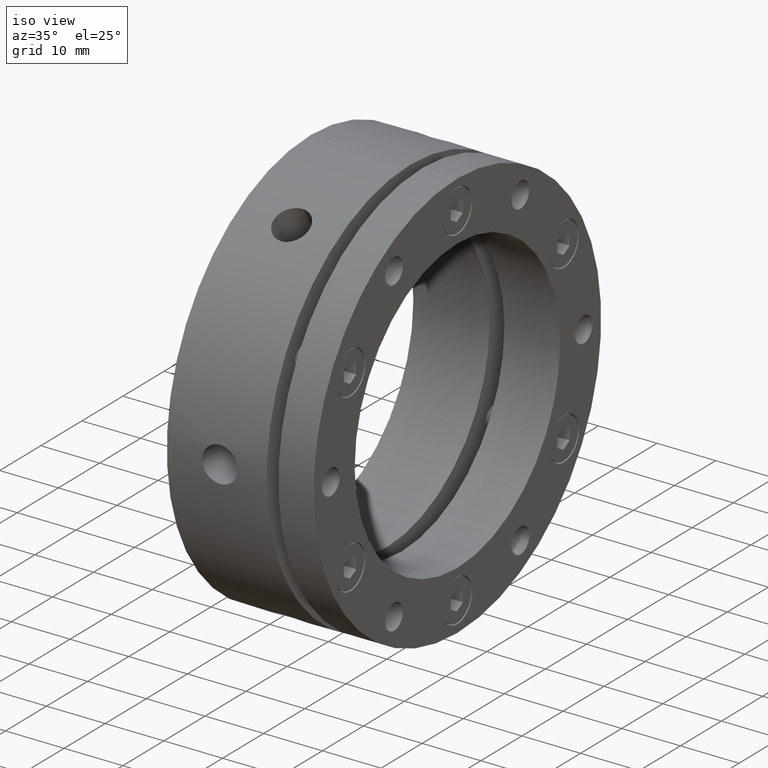
[diagram: clean part render]
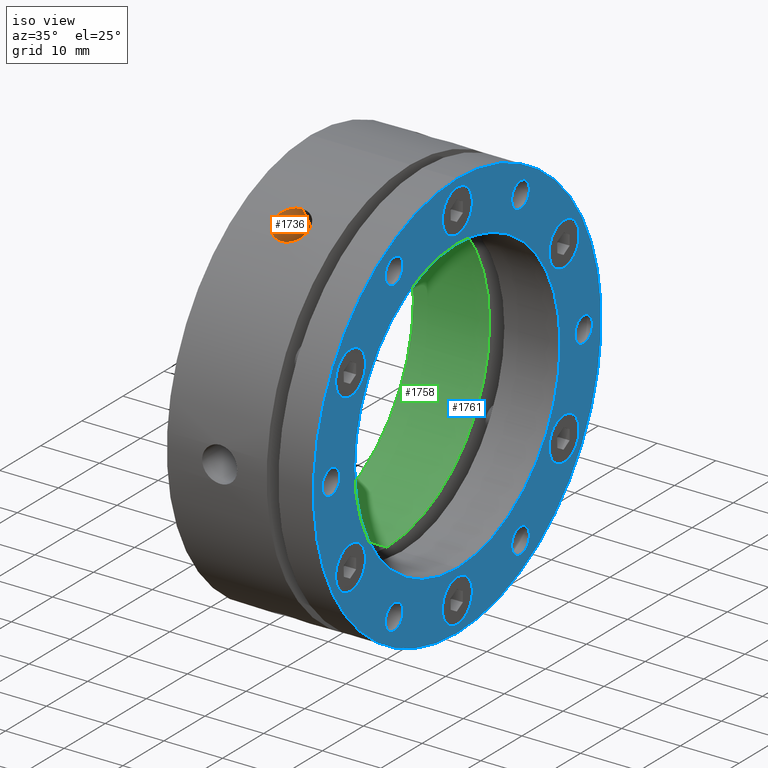
[diagram: same view with three faces highlighted in distinct colors, each labeled with its STEP entity id]
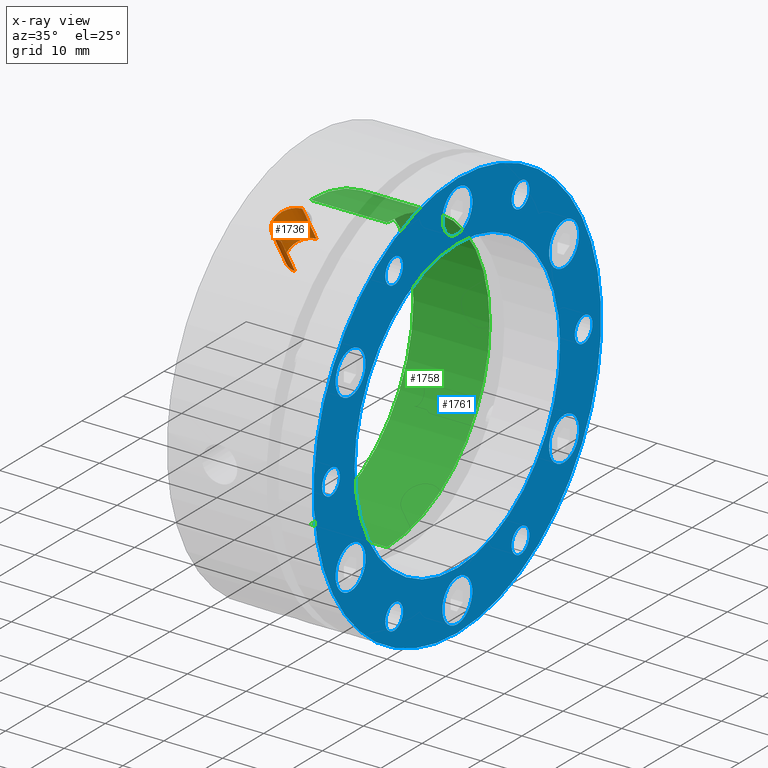
[diagram: x-ray of the same camera — body ghosted, the three highlighted faces saturated]
A machine part, iso view with three faces highlighted in distinct colors.
The next image is the same camera in x-ray (body ghosted, the three faces saturated) — at least one of them is partly hidden behind the body in this view.
Their STEP definitions:

[orange] entity #1736 — the highlighted cylindrical surface (edge-blend (fillet) strip) has radius 3 mm, axis along (0, -0.5, 0.866).
#57 = AXIS2_PLACEMENT_3D ( 'NONE', #3183, #3184, #3185 ) ;
#92 = AXIS2_PLACEMENT_3D ( 'NONE', #3284, #3283, #3281 ) ;
#241 = B_SPLINE_CURVE_WITH_KNOTS ( 'NONE', 3,
 ( #3085, #3045, #3088, #3089, #3090, #3091, #3092, #3093, #3094, #3095, #3096, #3097, #3098, #3099, #3100, #3101, #3102, #3103, #3104, #3105, #3106, #3107, #3108, #3109, #3110, #3111, #3112, #3113, #3114, #3115, #3116, #3117, #3118, #3119 ),
 .UNSPECIFIED., .F., .F.,
 ( 4, 2, 2, 2, 2, 2, 2, 2, 2, 2, 2, 2, 2, 2, 2, 2, 4 ),
 ( 0.01407455708570578800, 0.01466090968183382500, 0.01524726227796186300, 0.01583361487408990400, 0.01641996747021794200, 0.01700632006634598300, 0.01759267266247402400, 0.01817902525860206500, 0.01876537785473010200, 0.01935173045085814400, 0.01993808304698618100, 0.02052443564311422200, 0.02111078823924226300, 0.02169714083537030100, 0.02228349343149833800, 0.02286984602762638000, 0.02345619862375442100 ),
 .UNSPECIFIED. ) ;
#321 = ORIENTED_EDGE ( 'NONE', *, *, #1703, .F. ) ;
#336 = ORIENTED_EDGE ( 'NONE', *, *, #1688, .F. ) ;
#337 = ORIENTED_EDGE ( 'NONE', *, *, #1687, .T. ) ;
#342 = ORIENTED_EDGE ( 'NONE', *, *, #1689, .F. ) ;
#545 = EDGE_LOOP ( 'NONE', ( #321, #337, #336, #342 ) ) ;
#678 = VERTEX_POINT ( 'NONE', #1608 ) ;
#679 = VERTEX_POINT ( 'NONE', #1619 ) ;
#681 = VERTEX_POINT ( 'NONE', #1620 ) ;
#687 = VERTEX_POINT ( 'NONE', #1625 ) ;
#1608 = CARTESIAN_POINT ( 'NONE',  ( 8.999999999999989300, -14.83751956280938200, 31.69933774108299600 ) ) ;
#1619 = CARTESIAN_POINT ( 'NONE',  ( 8.999999999999989300, -11.40192379214960800, 25.74871130394186400 ) ) ;
#1620 = CARTESIAN_POINT ( 'NONE',  ( 8.999999999999989300, -16.59807620785038700, 22.74871130798669600 ) ) ;
#1625 = CARTESIAN_POINT ( 'NONE',  ( 8.999999999999989300, -20.03367198551601500, 28.69933774108300300 ) ) ;
#1687 = EDGE_CURVE ( 'NONE', #679, #678, #2516, .T. ) ;
#1688 = EDGE_CURVE ( 'NONE', #687, #678, #241, .T. ) ;
#1689 = EDGE_CURVE ( 'NONE', #681, #687, #2513, .T. ) ;
#1703 = EDGE_CURVE ( 'NONE', #679, #681, #2536, .T. ) ;
#1736 = ADVANCED_FACE ( 'NONE', ( #2584 ), #2593, .F. ) ;
#2513 = LINE ( 'NONE', #3087, #2519 ) ;
#2516 = LINE ( 'NONE', #3084, #2517 ) ;
#2517 = VECTOR ( 'NONE', #3086, 1000.000000000000100 ) ;
#2519 = VECTOR ( 'NONE', #3120, 1000.000000000000100 ) ;
#2536 = CIRCLE ( 'NONE', #57, 3.000000000000000900 ) ;
#2584 = FACE_OUTER_BOUND ( 'NONE', #545, .T. ) ;
#2593 = CYLINDRICAL_SURFACE ( 'NONE', #92, 3.000000000000002700 ) ;
#3045 = CARTESIAN_POINT ( 'NONE',  ( 8.804268280299762500, -20.03367198551602300, 28.69933774108301000 ) ) ;
#3084 = CARTESIAN_POINT ( 'NONE',  ( 8.999999999999989300, -13.15192378864668800, 28.77980021920981800 ) ) ;
#3085 = CARTESIAN_POINT ( 'NONE',  ( 8.999999999999989300, -20.03367198551601500, 28.69933774108300300 ) ) ;
#3086 = DIRECTION ( 'NONE',  ( 0.0000000000000000000, -0.4999999999999998300, 0.8660254037844387100 ) ) ;
#3087 = CARTESIAN_POINT ( 'NONE',  ( 8.999999999999989300, -18.34807621135332300, 25.77980021920981500 ) ) ;
#3088 = CARTESIAN_POINT ( 'NONE',  ( 8.605453765022618400, -20.01755239018052300, 28.71060917894779500 ) ) ;
#3089 = CARTESIAN_POINT ( 'NONE',  ( 8.220725838262371400, -19.95432212370121800, 28.75459114130248800 ) ) ;
#3090 = CARTESIAN_POINT ( 'NONE',  ( 8.033723180911865200, -19.90755666924330600, 28.78706098826131300 ) ) ;
#3091 = CARTESIAN_POINT ( 'NONE',  ( 7.670497288597322200, -19.78325691294927300, 28.87262438361386800 ) ) ;
#3092 = CARTESIAN_POINT ( 'NONE',  ( 7.495000060651513300, -19.70549405006566000, 28.92585969711920100 ) ) ;
#3093 = CARTESIAN_POINT ( 'NONE',  ( 7.170130174295246100, -19.52514504749969900, 29.04790122967055800 ) ) ;
#3094 = CARTESIAN_POINT ( 'NONE',  ( 7.018680568677830900, -19.42194185377912400, 29.11714024361556200 ) ) ;
#3095 = CARTESIAN_POINT ( 'NONE',  ( 6.738623315095864500, -19.18790157874091700, 29.27189973921245800 ) ) ;
#3096 = CARTESIAN_POINT ( 'NONE',  ( 6.614562747570034600, -19.06083873803343600, 29.35491209386406200 ) ) ;
#3097 = CARTESIAN_POINT ( 'NONE',  ( 6.397411554288462200, -18.78727967735345300, 29.53073923491765000 ) ) ;
#3098 = CARTESIAN_POINT ( 'NONE',  ( 6.303506750881621400, -18.63899474074403200, 29.62466742915554700 ) ) ;
#3099 = CARTESIAN_POINT ( 'NONE',  ( 6.153028218465058400, -18.33026746125752400, 29.81667889004940300 ) ) ;
#3100 = CARTESIAN_POINT ( 'NONE',  ( 6.096317045494524600, -18.17068395965968700, 29.91426449584248800 ) ) ;
#3101 = CARTESIAN_POINT ( 'NONE',  ( 6.019611320088898800, -17.84089705569850900, 30.11211331237024100 ) ) ;
#3102 = CARTESIAN_POINT ( 'NONE',  ( 5.999860334824981000, -17.66985355283397800, 30.21283796126777700 ) ) ;
#3103 = CARTESIAN_POINT ( 'NONE',  ( 6.000141170212506500, -17.32646598378768100, 30.41106507120510100 ) ) ;
#3104 = CARTESIAN_POINT ( 'NONE',  ( 6.019737038147032300, -17.15681452304187400, 30.50705630778153600 ) ) ;
#3105 = CARTESIAN_POINT ( 'NONE',  ( 6.096246883539026700, -16.82151955082783000, 30.69321177630862300 ) ) ;
#3106 = CARTESIAN_POINT ( 'NONE',  ( 6.154098672214940000, -16.65410763915669900, 30.78430922376006500 ) ) ;
#3107 = CARTESIAN_POINT ( 'NONE',  ( 6.304924467368763900, -16.33368321426678400, 30.95551305174372200 ) ) ;
#3108 = CARTESIAN_POINT ( 'NONE',  ( 6.397176593505297300, -16.18101755137164200, 31.03548423093851800 ) ) ;
#3109 = CARTESIAN_POINT ( 'NONE',  ( 6.615076528430468400, -15.89102210515650300, 31.18496475707576800 ) ) ;
#3110 = CARTESIAN_POINT ( 'NONE',  ( 6.741812522239063900, -15.75322166183033100, 31.25468245826290600 ) ) ;
#3111 = CARTESIAN_POINT ( 'NONE',  ( 7.018599878174891100, -15.50546405339725500, 31.37833253667908600 ) ) ;
#3112 = CARTESIAN_POINT ( 'NONE',  ( 7.169632827054541300, -15.39385651673429200, 31.43312337778202100 ) ) ;
#3113 = CARTESIAN_POINT ( 'NONE',  ( 7.497657549083732500, -15.19627189349017700, 31.52911962424245100 ) ) ;
#3114 = CARTESIAN_POINT ( 'NONE',  ( 7.672148078468835000, -15.11214187789458800, 31.56942800941039800 ) ) ;
#3115 = CARTESIAN_POINT ( 'NONE',  ( 8.033141099482682200, -14.97680286179778300, 31.63385833277071400 ) ) ;
#3116 = CARTESIAN_POINT ( 'NONE',  ( 8.222315267350257500, -14.92458160703963300, 31.65846413517274600 ) ) ;
#3117 = CARTESIAN_POINT ( 'NONE',  ( 8.609574061491349200, -14.85477257535943000, 31.69127986177829100 ) ) ;
#3118 = CARTESIAN_POINT ( 'NONE',  ( 8.804267984461208800, -14.83751956280938700, 31.69933774108301000 ) ) ;
#3119 = CARTESIAN_POINT ( 'NONE',  ( 8.999999999999989300, -14.83751956280938200, 31.69933774108299600 ) ) ;
#3120 = DIRECTION ( 'NONE',  ( 0.0000000000000000000, -0.4999999999999998300, 0.8660254037844387100 ) ) ;
#3183 = CARTESIAN_POINT ( 'NONE',  ( 8.999999999999989300, -14.00000000000000200, 24.24871130596427800 ) ) ;
#3184 = DIRECTION ( 'NONE',  ( 0.0000000000000000000, -0.4999999999999998900, 0.8660254037844388200 ) ) ;
#3185 = DIRECTION ( 'NONE',  ( 0.0000000000000000000, -0.8660254037844391500, -0.4999999999999991100 ) ) ;
#3281 = DIRECTION ( 'NONE',  ( 0.0000000000000000000, -0.8660254037844386000, -0.5000000000000000000 ) ) ;
#3283 = DIRECTION ( 'NONE',  ( 0.0000000000000000000, -0.4999999999999998900, 0.8660254037844388200 ) ) ;
#3284 = CARTESIAN_POINT ( 'NONE',  ( 8.999999999999989300, -15.75000000000000400, 27.27980021920981800 ) ) ;

[blue] entity #1761 — the highlighted planar face has unit normal (1, 0, 0).
#66 = AXIS2_PLACEMENT_3D ( 'NONE', #3210, #3211, #3212 ) ;
#69 = AXIS2_PLACEMENT_3D ( 'NONE', #3221, #3222, #3223 ) ;
#70 = AXIS2_PLACEMENT_3D ( 'NONE', #3225, #3226, #3227 ) ;
#115 = AXIS2_PLACEMENT_3D ( 'NONE', #3360, #3357, #3363 ) ;
#208 = AXIS2_PLACEMENT_3D ( 'NONE', #3660, #3661, #3662 ) ;
#211 = AXIS2_PLACEMENT_3D ( 'NONE', #3679, #3680, #3681 ) ;
#212 = AXIS2_PLACEMENT_3D ( 'NONE', #3682, #3683, #3684 ) ;
#213 = AXIS2_PLACEMENT_3D ( 'NONE', #3687, #3688, #3689 ) ;
#216 = AXIS2_PLACEMENT_3D ( 'NONE', #3698, #3699, #3700 ) ;
#217 = AXIS2_PLACEMENT_3D ( 'NONE', #3705, #3706, #3707 ) ;
#218 = AXIS2_PLACEMENT_3D ( 'NONE', #3708, #3709, #3710 ) ;
#219 = AXIS2_PLACEMENT_3D ( 'NONE', #3711, #3712, #3713 ) ;
#222 = AXIS2_PLACEMENT_3D ( 'NONE', #3730, #3731, #3732 ) ;
#226 = AXIS2_PLACEMENT_3D ( 'NONE', #3771, #3772, #3773 ) ;
#228 = AXIS2_PLACEMENT_3D ( 'NONE', #3782, #3783, #3784 ) ;
#230 = AXIS2_PLACEMENT_3D ( 'NONE', #3792, #3793, #3794 ) ;
#233 = AXIS2_PLACEMENT_3D ( 'NONE', #3803, #3804, #3805 ) ;
#280 = EDGE_LOOP ( 'NONE', ( #1442, #1441 ) ) ;
#294 = EDGE_LOOP ( 'NONE', ( #1073, #1074 ) ) ;
#300 = EDGE_LOOP ( 'NONE', ( #438, #1464 ) ) ;
#302 = EDGE_LOOP ( 'NONE', ( #1077, #1078 ) ) ;
#306 = EDGE_LOOP ( 'NONE', ( #1450, #1447 ) ) ;
#307 = EDGE_LOOP ( 'NONE', ( #1440, #439 ) ) ;
#308 = EDGE_LOOP ( 'NONE', ( #1449, #1448 ) ) ;
#311 = EDGE_LOOP ( 'NONE', ( #1444, #1443 ) ) ;
#313 = EDGE_LOOP ( 'NONE', ( #1446, #1445 ) ) ;
#319 = EDGE_LOOP ( 'NONE', ( #1452, #1451 ) ) ;
#409 = EDGE_LOOP ( 'NONE', ( #1075, #1076 ) ) ;
#411 = EDGE_LOOP ( 'NONE', ( #1069, #1070 ) ) ;
#421 = EDGE_LOOP ( 'NONE', ( #1071, #1072 ) ) ;
#436 = EDGE_LOOP ( 'NONE', ( #1067, #1068 ) ) ;
#438 = ORIENTED_EDGE ( 'NONE', *, *, #4026, .T. ) ;
#439 = ORIENTED_EDGE ( 'NONE', *, *, #4727, .T. ) ;
#457 = VERTEX_POINT ( 'NONE', #1482 ) ;
#470 = VERTEX_POINT ( 'NONE', #1475 ) ;
#471 = VERTEX_POINT ( 'NONE', #1479 ) ;
#472 = VERTEX_POINT ( 'NONE', #1484 ) ;
#473 = VERTEX_POINT ( 'NONE', #1485 ) ;
#478 = VERTEX_POINT ( 'NONE', #1488 ) ;
#483 = VERTEX_POINT ( 'NONE', #1489 ) ;
#487 = VERTEX_POINT ( 'NONE', #1491 ) ;
#507 = VERTEX_POINT ( 'NONE', #1497 ) ;
#529 = VERTEX_POINT ( 'NONE', #1509 ) ;
#571 = EDGE_CURVE ( 'NONE', #799, #800, #837, .T. ) ;
#586 = EDGE_CURVE ( 'NONE', #814, #815, #863, .T. ) ;
#603 = AXIS2_PLACEMENT_3D ( 'NONE', #1530, #1531, #1532 ) ;
#610 = AXIS2_PLACEMENT_3D ( 'NONE', #1565, #1566, #1567 ) ;
#799 = VERTEX_POINT ( 'NONE', #1948 ) ;
#800 = VERTEX_POINT ( 'NONE', #1949 ) ;
#802 = VERTEX_POINT ( 'NONE', #1951 ) ;
#803 = VERTEX_POINT ( 'NONE', #1952 ) ;
#806 = VERTEX_POINT ( 'NONE', #1955 ) ;
#807 = VERTEX_POINT ( 'NONE', #1956 ) ;
#810 = VERTEX_POINT ( 'NONE', #1959 ) ;
#811 = VERTEX_POINT ( 'NONE', #1960 ) ;
#814 = VERTEX_POINT ( 'NONE', #1963 ) ;
#815 = VERTEX_POINT ( 'NONE', #1964 ) ;
#818 = VERTEX_POINT ( 'NONE', #1967 ) ;
#819 = VERTEX_POINT ( 'NONE', #1968 ) ;
#822 = VERTEX_POINT ( 'NONE', #1971 ) ;
#823 = VERTEX_POINT ( 'NONE', #1972 ) ;
#826 = VERTEX_POINT ( 'NONE', #1975 ) ;
#827 = VERTEX_POINT ( 'NONE', #1976 ) ;
#830 = VERTEX_POINT ( 'NONE', #1979 ) ;
#831 = VERTEX_POINT ( 'NONE', #1980 ) ;
#837 = CIRCLE ( 'NONE', #603, 35.00000000000000000 ) ;
#863 = CIRCLE ( 'NONE', #610, 3.649999999999998600 ) ;
#1067 = ORIENTED_EDGE ( 'NONE', *, *, #4010, .T. ) ;
#1068 = ORIENTED_EDGE ( 'NONE', *, *, #3994, .T. ) ;
#1069 = ORIENTED_EDGE ( 'NONE', *, *, #4028, .T. ) ;
#1070 = ORIENTED_EDGE ( 'NONE', *, *, #4732, .T. ) ;
#1071 = ORIENTED_EDGE ( 'NONE', *, *, #4008, .T. ) ;
#1072 = ORIENTED_EDGE ( 'NONE', *, *, #4718, .T. ) ;
#1073 = ORIENTED_EDGE ( 'NONE', *, *, #4036, .T. ) ;
#1074 = ORIENTED_EDGE ( 'NONE', *, *, #4721, .T. ) ;
#1075 = ORIENTED_EDGE ( 'NONE', *, *, #4054, .T. ) ;
#1076 = ORIENTED_EDGE ( 'NONE', *, *, #4722, .T. ) ;
#1077 = ORIENTED_EDGE ( 'NONE', *, *, #1715, .F. ) ;
#1078 = ORIENTED_EDGE ( 'NONE', *, *, #571, .F. ) ;
#1440 = ORIENTED_EDGE ( 'NONE', *, *, #4014, .T. ) ;
#1441 = ORIENTED_EDGE ( 'NONE', *, *, #4726, .T. ) ;
#1442 = ORIENTED_EDGE ( 'NONE', *, *, #4019, .T. ) ;
#1443 = ORIENTED_EDGE ( 'NONE', *, *, #4729, .T. ) ;
#1444 = ORIENTED_EDGE ( 'NONE', *, *, #4027, .T. ) ;
#1445 = ORIENTED_EDGE ( 'NONE', *, *, #4723, .T. ) ;
#1446 = ORIENTED_EDGE ( 'NONE', *, *, #586, .T. ) ;
#1447 = ORIENTED_EDGE ( 'NONE', *, *, #4716, .T. ) ;
#1448 = ORIENTED_EDGE ( 'NONE', *, *, #1712, .T. ) ;
#1449 = ORIENTED_EDGE ( 'NONE', *, *, #4068, .T. ) ;
#1450 = ORIENTED_EDGE ( 'NONE', *, *, #4059, .T. ) ;
#1451 = ORIENTED_EDGE ( 'NONE', *, *, #1716, .T. ) ;
#1452 = ORIENTED_EDGE ( 'NONE', *, *, #4063, .T. ) ;
#1464 = ORIENTED_EDGE ( 'NONE', *, *, #4730, .T. ) ;
#1475 = CARTESIAN_POINT ( 'NONE',  ( 24.99999999999999300, -30.75000000000001100, 2.149999999999982100 ) ) ;
#1479 = CARTESIAN_POINT ( 'NONE',  ( 24.99999999999999300, 30.75000000000000700, 2.150000000000006600 ) ) ;
#1482 = CARTESIAN_POINT ( 'NONE',  ( 24.99999999999999300, 15.37500000000001100, 24.48028116637149800 ) ) ;
#1484 = CARTESIAN_POINT ( 'NONE',  ( 24.99999999999999300, 15.37500000000001100, 28.78028116637149500 ) ) ;
#1485 = CARTESIAN_POINT ( 'NONE',  ( 24.99999999999999300, -30.75000000000001100, -2.150000000000017700 ) ) ;
#1488 = CARTESIAN_POINT ( 'NONE',  ( 24.99999999999999300, -15.37499999999999500, -24.48028116637150500 ) ) ;
#1489 = CARTESIAN_POINT ( 'NONE',  ( 24.99999999999999300, 30.75000000000000700, -2.149999999999993700 ) ) ;
#1491 = CARTESIAN_POINT ( 'NONE',  ( 24.99999999999999300, 15.37500000000002300, -24.48028116637148700 ) ) ;
#1497 = CARTESIAN_POINT ( 'NONE',  ( 24.99999999999999300, 15.37500000000002300, -28.78028116637148400 ) ) ;
#1509 = CARTESIAN_POINT ( 'NONE',  ( 24.99999999999999300, -15.37499999999999500, -28.78028116637150500 ) ) ;
#1530 = CARTESIAN_POINT ( 'NONE',  ( 24.99999999999999300, 0.0000000000000000000, 0.0000000000000000000 ) ) ;
#1531 = DIRECTION ( 'NONE',  ( -1.000000000000000000, -0.0000000000000000000, -0.0000000000000000000 ) ) ;
#1532 = DIRECTION ( 'NONE',  ( 0.0000000000000000000, 0.0000000000000000000, -1.000000000000000000 ) ) ;
#1565 = CARTESIAN_POINT ( 'NONE',  ( 24.99999999999999300, -25.98076211353316700, -14.99999999999999800 ) ) ;
#1566 = DIRECTION ( 'NONE',  ( -1.000000000000000000, -0.0000000000000000000, -0.0000000000000000000 ) ) ;
#1567 = DIRECTION ( 'NONE',  ( 0.0000000000000000000, 0.0000000000000000000, -1.000000000000000000 ) ) ;
#1712 = EDGE_CURVE ( 'NONE', #803, #802, #2547, .T. ) ;
#1715 = EDGE_CURVE ( 'NONE', #800, #799, #2550, .T. ) ;
#1716 = EDGE_CURVE ( 'NONE', #807, #806, #2551, .T. ) ;
#1761 = ADVANCED_FACE ( 'NONE', ( #2643, #2651, #2647, #2645, #2649, #2652, #2653, #2654, #2655, #2656, #2657, #2658, #2659, #2660 ), #3362, .T. ) ;
#1948 = CARTESIAN_POINT ( 'NONE',  ( 24.99999999999999300, 4.286263797015736500E-015, 35.00000000000000000 ) ) ;
#1949 = CARTESIAN_POINT ( 'NONE',  ( 24.99999999999999300, 0.0000000000000000000, -35.00000000000000000 ) ) ;
#1951 = CARTESIAN_POINT ( 'NONE',  ( 24.99999999999999300, 0.0000000000000000000, -25.00000000000000000 ) ) ;
#1952 = CARTESIAN_POINT ( 'NONE',  ( 24.99999999999999300, 3.061616997868383000E-015, 25.00000000000000000 ) ) ;
#1955 = CARTESIAN_POINT ( 'NONE',  ( 24.99999999999999300, 0.0000000000000000000, 26.35000000000000900 ) ) ;
#1956 = CARTESIAN_POINT ( 'NONE',  ( 24.99999999999999300, 4.469960816887843400E-016, 33.65000000000000600 ) ) ;
#1959 = CARTESIAN_POINT ( 'NONE',  ( 24.99999999999999300, -25.98076211353316400, 11.35000000000000900 ) ) ;
#1960 = CARTESIAN_POINT ( 'NONE',  ( 24.99999999999999300, -25.98076211353316400, 18.65000000000000900 ) ) ;
#1963 = CARTESIAN_POINT ( 'NONE',  ( 24.99999999999999300, -25.98076211353316700, -18.64999999999999500 ) ) ;
#1964 = CARTESIAN_POINT ( 'NONE',  ( 24.99999999999999300, -25.98076211353316700, -11.34999999999999800 ) ) ;
#1967 = CARTESIAN_POINT ( 'NONE',  ( 24.99999999999999300, -4.440891999999999900E-015, -33.65000000000001300 ) ) ;
#1968 = CARTESIAN_POINT ( 'NONE',  ( 24.99999999999999300, -3.993895918311216500E-015, -26.35000000000001600 ) ) ;
#1971 = CARTESIAN_POINT ( 'NONE',  ( 24.99999999999999300, 25.98076211353316000, -18.65000000000002000 ) ) ;
#1972 = CARTESIAN_POINT ( 'NONE',  ( 24.99999999999999300, 25.98076211353316000, -11.35000000000001900 ) ) ;
#1975 = CARTESIAN_POINT ( 'NONE',  ( 24.99999999999999300, 25.98076211353318100, 11.34999999999998500 ) ) ;
#1976 = CARTESIAN_POINT ( 'NONE',  ( 24.99999999999999300, 25.98076211353318100, 18.64999999999998400 ) ) ;
#1979 = CARTESIAN_POINT ( 'NONE',  ( 24.99999999999999300, -15.37500000000002500, 24.48028116637148700 ) ) ;
#1980 = CARTESIAN_POINT ( 'NONE',  ( 24.99999999999999300, -15.37500000000002500, 28.78028116637148400 ) ) ;
#2547 = CIRCLE ( 'NONE', #66, 25.00000000000000000 ) ;
#2550 = CIRCLE ( 'NONE', #69, 35.00000000000000000 ) ;
#2551 = CIRCLE ( 'NONE', #70, 3.650000000000000400 ) ;
#2643 = FACE_BOUND ( 'NONE', #308, .T. ) ;
#2645 = FACE_BOUND ( 'NONE', #313, .T. ) ;
#2647 = FACE_BOUND ( 'NONE', #306, .T. ) ;
#2649 = FACE_BOUND ( 'NONE', #311, .T. ) ;
#2651 = FACE_BOUND ( 'NONE', #319, .T. ) ;
#2652 = FACE_BOUND ( 'NONE', #280, .T. ) ;
#2653 = FACE_BOUND ( 'NONE', #307, .T. ) ;
#2654 = FACE_BOUND ( 'NONE', #300, .T. ) ;
#2655 = FACE_BOUND ( 'NONE', #436, .T. ) ;
#2656 = FACE_BOUND ( 'NONE', #411, .T. ) ;
#2657 = FACE_BOUND ( 'NONE', #421, .T. ) ;
#2658 = FACE_BOUND ( 'NONE', #294, .T. ) ;
#2659 = FACE_BOUND ( 'NONE', #409, .T. ) ;
#2660 = FACE_OUTER_BOUND ( 'NONE', #302, .T. ) ;
#2859 = CIRCLE ( 'NONE', #208, 2.149999999999999900 ) ;
#2872 = CIRCLE ( 'NONE', #211, 2.149999999999999000 ) ;
#2874 = CIRCLE ( 'NONE', #212, 2.149999999999999900 ) ;
#2876 = CIRCLE ( 'NONE', #213, 3.650000000000000400 ) ;
#2881 = CIRCLE ( 'NONE', #216, 3.650000000000000400 ) ;
#2886 = CIRCLE ( 'NONE', #217, 2.149999999999999000 ) ;
#2888 = CIRCLE ( 'NONE', #218, 3.649999999999996800 ) ;
#2890 = CIRCLE ( 'NONE', #219, 2.149999999999999000 ) ;
#2902 = CIRCLE ( 'NONE', #222, 2.149999999999999900 ) ;
#2925 = CIRCLE ( 'NONE', #226, 2.149999999999999000 ) ;
#2941 = CIRCLE ( 'NONE', #228, 3.650000000000000400 ) ;
#2948 = CIRCLE ( 'NONE', #230, 3.650000000000000400 ) ;
#2956 = CIRCLE ( 'NONE', #233, 25.00000000000000000 ) ;
#3210 = CARTESIAN_POINT ( 'NONE',  ( 24.99999999999999300, 0.0000000000000000000, 0.0000000000000000000 ) ) ;
#3211 = DIRECTION ( 'NONE',  ( -1.000000000000000000, -0.0000000000000000000, -0.0000000000000000000 ) ) ;
#3212 = DIRECTION ( 'NONE',  ( 0.0000000000000000000, 0.0000000000000000000, -1.000000000000000000 ) ) ;
#3221 = CARTESIAN_POINT ( 'NONE',  ( 24.99999999999999300, 0.0000000000000000000, 0.0000000000000000000 ) ) ;
#3222 = DIRECTION ( 'NONE',  ( -1.000000000000000000, -0.0000000000000000000, -0.0000000000000000000 ) ) ;
#3223 = DIRECTION ( 'NONE',  ( 0.0000000000000000000, 0.0000000000000000000, -1.000000000000000000 ) ) ;
#3225 = CARTESIAN_POINT ( 'NONE',  ( 24.99999999999999300, 0.0000000000000000000, 30.00000000000001100 ) ) ;
#3226 = DIRECTION ( 'NONE',  ( -1.000000000000000000, -0.0000000000000000000, -0.0000000000000000000 ) ) ;
#3227 = DIRECTION ( 'NONE',  ( 0.0000000000000000000, 0.0000000000000000000, -1.000000000000000000 ) ) ;
#3357 = DIRECTION ( 'NONE',  ( 1.000000000000000000, -0.0000000000000000000, 0.0000000000000000000 ) ) ;
#3360 = CARTESIAN_POINT ( 'NONE',  ( 24.99999999999999300, 30.00000000000000000, 0.0000000000000000000 ) ) ;
#3362 = PLANE ( 'NONE',  #115 ) ;
#3363 = DIRECTION ( 'NONE',  ( 0.0000000000000000000, 0.0000000000000000000, -1.000000000000000000 ) ) ;
#3660 = CARTESIAN_POINT ( 'NONE',  ( 24.99999999999999300, -30.75000000000001100, -1.776356999999999900E-014 ) ) ;
#3661 = DIRECTION ( 'NONE',  ( -1.000000000000000000, -0.0000000000000000000, -0.0000000000000000000 ) ) ;
#3662 = DIRECTION ( 'NONE',  ( 0.0000000000000000000, 0.0000000000000000000, -1.000000000000000000 ) ) ;
#3679 = CARTESIAN_POINT ( 'NONE',  ( 24.99999999999999300, 15.37500000000002300, -26.63028116637148600 ) ) ;
#3680 = DIRECTION ( 'NONE',  ( -1.000000000000000000, -0.0000000000000000000, -0.0000000000000000000 ) ) ;
#3681 = DIRECTION ( 'NONE',  ( 0.0000000000000000000, 0.0000000000000000000, -1.000000000000000000 ) ) ;
#3682 = CARTESIAN_POINT ( 'NONE',  ( 24.99999999999999300, -30.75000000000001100, -1.776356999999999900E-014 ) ) ;
#3683 = DIRECTION ( 'NONE',  ( -1.000000000000000000, -0.0000000000000000000, -0.0000000000000000000 ) ) ;
#3684 = DIRECTION ( 'NONE',  ( 0.0000000000000000000, 0.0000000000000000000, -1.000000000000000000 ) ) ;
#3687 = CARTESIAN_POINT ( 'NONE',  ( 24.99999999999999300, 25.98076211353318100, 14.99999999999998600 ) ) ;
#3688 = DIRECTION ( 'NONE',  ( -1.000000000000000000, -0.0000000000000000000, -0.0000000000000000000 ) ) ;
#3689 = DIRECTION ( 'NONE',  ( 0.0000000000000000000, 0.0000000000000000000, -1.000000000000000000 ) ) ;
#3698 = CARTESIAN_POINT ( 'NONE',  ( 24.99999999999999300, 25.98076211353316000, -15.00000000000002000 ) ) ;
#3699 = DIRECTION ( 'NONE',  ( -1.000000000000000000, -0.0000000000000000000, -0.0000000000000000000 ) ) ;
#3700 = DIRECTION ( 'NONE',  ( 0.0000000000000000000, 0.0000000000000000000, -1.000000000000000000 ) ) ;
#3705 = CARTESIAN_POINT ( 'NONE',  ( 24.99999999999999300, -15.37500000000002500, 26.63028116637148600 ) ) ;
#3706 = DIRECTION ( 'NONE',  ( -1.000000000000000000, -0.0000000000000000000, -0.0000000000000000000 ) ) ;
#3707 = DIRECTION ( 'NONE',  ( 0.0000000000000000000, 0.0000000000000000000, -1.000000000000000000 ) ) ;
#3708 = CARTESIAN_POINT ( 'NONE',  ( 24.99999999999999300, -4.440891999999999900E-015, -30.00000000000001800 ) ) ;
#3709 = DIRECTION ( 'NONE',  ( -1.000000000000000000, -0.0000000000000000000, -0.0000000000000000000 ) ) ;
#3710 = DIRECTION ( 'NONE',  ( 0.0000000000000000000, 0.0000000000000000000, -1.000000000000000000 ) ) ;
#3711 = CARTESIAN_POINT ( 'NONE',  ( 24.99999999999999300, -15.37499999999999500, -26.63028116637150700 ) ) ;
#3712 = DIRECTION ( 'NONE',  ( -1.000000000000000000, -0.0000000000000000000, -0.0000000000000000000 ) ) ;
#3713 = DIRECTION ( 'NONE',  ( 0.0000000000000000000, 0.0000000000000000000, -1.000000000000000000 ) ) ;
#3730 = CARTESIAN_POINT ( 'NONE',  ( 24.99999999999999300, 30.75000000000000700, 6.661337999999999900E-015 ) ) ;
#3731 = DIRECTION ( 'NONE',  ( -1.000000000000000000, -0.0000000000000000000, -0.0000000000000000000 ) ) ;
#3732 = DIRECTION ( 'NONE',  ( 0.0000000000000000000, 0.0000000000000000000, -1.000000000000000000 ) ) ;
#3771 = CARTESIAN_POINT ( 'NONE',  ( 24.99999999999999300, 15.37500000000001100, 26.63028116637149600 ) ) ;
#3772 = DIRECTION ( 'NONE',  ( -1.000000000000000000, -0.0000000000000000000, -0.0000000000000000000 ) ) ;
#3773 = DIRECTION ( 'NONE',  ( 0.0000000000000000000, 0.0000000000000000000, -1.000000000000000000 ) ) ;
#3782 = CARTESIAN_POINT ( 'NONE',  ( 24.99999999999999300, -25.98076211353316400, 15.00000000000001100 ) ) ;
#3783 = DIRECTION ( 'NONE',  ( -1.000000000000000000, -0.0000000000000000000, -0.0000000000000000000 ) ) ;
#3784 = DIRECTION ( 'NONE',  ( 0.0000000000000000000, 0.0000000000000000000, -1.000000000000000000 ) ) ;
#3792 = CARTESIAN_POINT ( 'NONE',  ( 24.99999999999999300, 0.0000000000000000000, 30.00000000000001100 ) ) ;
#3793 = DIRECTION ( 'NONE',  ( -1.000000000000000000, -0.0000000000000000000, -0.0000000000000000000 ) ) ;
#3794 = DIRECTION ( 'NONE',  ( 0.0000000000000000000, 0.0000000000000000000, -1.000000000000000000 ) ) ;
#3803 = CARTESIAN_POINT ( 'NONE',  ( 24.99999999999999300, 0.0000000000000000000, 0.0000000000000000000 ) ) ;
#3804 = DIRECTION ( 'NONE',  ( -1.000000000000000000, -0.0000000000000000000, -0.0000000000000000000 ) ) ;
#3805 = DIRECTION ( 'NONE',  ( 0.0000000000000000000, 0.0000000000000000000, -1.000000000000000000 ) ) ;
#3994 = EDGE_CURVE ( 'NONE', #470, #473, #2859, .T. ) ;
#4008 = EDGE_CURVE ( 'NONE', #507, #487, #2872, .T. ) ;
#4010 = EDGE_CURVE ( 'NONE', #473, #470, #2874, .T. ) ;
#4014 = EDGE_CURVE ( 'NONE', #826, #827, #2876, .T. ) ;
#4019 = EDGE_CURVE ( 'NONE', #822, #823, #2881, .T. ) ;
#4026 = EDGE_CURVE ( 'NONE', #830, #831, #2886, .T. ) ;
#4027 = EDGE_CURVE ( 'NONE', #818, #819, #2888, .T. ) ;
#4028 = EDGE_CURVE ( 'NONE', #529, #478, #2890, .T. ) ;
#4036 = EDGE_CURVE ( 'NONE', #483, #471, #2902, .T. ) ;
#4054 = EDGE_CURVE ( 'NONE', #457, #472, #2925, .T. ) ;
#4059 = EDGE_CURVE ( 'NONE', #810, #811, #2941, .T. ) ;
#4063 = EDGE_CURVE ( 'NONE', #806, #807, #2948, .T. ) ;
#4068 = EDGE_CURVE ( 'NONE', #802, #803, #2956, .T. ) ;
#4089 = AXIS2_PLACEMENT_3D ( 'NONE', #4478, #4479, #4480 ) ;
#4091 = AXIS2_PLACEMENT_3D ( 'NONE', #4484, #4485, #4486 ) ;
#4094 = AXIS2_PLACEMENT_3D ( 'NONE', #4493, #4494, #4495 ) ;
#4095 = AXIS2_PLACEMENT_3D ( 'NONE', #4496, #4497, #4498 ) ;
#4096 = AXIS2_PLACEMENT_3D ( 'NONE', #4499, #4500, #4501 ) ;
#4099 = AXIS2_PLACEMENT_3D ( 'NONE', #4508, #4509, #4510 ) ;
#4100 = AXIS2_PLACEMENT_3D ( 'NONE', #4511, #4512, #4513 ) ;
#4102 = AXIS2_PLACEMENT_3D ( 'NONE', #4517, #4518, #4519 ) ;
#4103 = AXIS2_PLACEMENT_3D ( 'NONE', #4520, #4521, #4522 ) ;
#4105 = AXIS2_PLACEMENT_3D ( 'NONE', #4527, #4528, #4529 ) ;
#4242 = CIRCLE ( 'NONE', #4089, 3.650000000000000400 ) ;
#4245 = CIRCLE ( 'NONE', #4091, 2.149999999999999000 ) ;
#4248 = CIRCLE ( 'NONE', #4094, 2.149999999999999900 ) ;
#4249 = CIRCLE ( 'NONE', #4095, 2.149999999999999000 ) ;
#4250 = CIRCLE ( 'NONE', #4096, 3.649999999999998600 ) ;
#4253 = CIRCLE ( 'NONE', #4099, 3.650000000000000400 ) ;
#4254 = CIRCLE ( 'NONE', #4100, 3.650000000000000400 ) ;
#4256 = CIRCLE ( 'NONE', #4102, 3.649999999999996800 ) ;
#4257 = CIRCLE ( 'NONE', #4103, 2.149999999999999000 ) ;
#4259 = CIRCLE ( 'NONE', #4105, 2.149999999999999000 ) ;
#4478 = CARTESIAN_POINT ( 'NONE',  ( 24.99999999999999300, -25.98076211353316400, 15.00000000000001100 ) ) ;
#4479 = DIRECTION ( 'NONE',  ( -1.000000000000000000, -0.0000000000000000000, -0.0000000000000000000 ) ) ;
#4480 = DIRECTION ( 'NONE',  ( 0.0000000000000000000, 0.0000000000000000000, -1.000000000000000000 ) ) ;
#4484 = CARTESIAN_POINT ( 'NONE',  ( 24.99999999999999300, 15.37500000000002300, -26.63028116637148600 ) ) ;
#4485 = DIRECTION ( 'NONE',  ( -1.000000000000000000, -0.0000000000000000000, -0.0000000000000000000 ) ) ;
#4486 = DIRECTION ( 'NONE',  ( 0.0000000000000000000, 0.0000000000000000000, -1.000000000000000000 ) ) ;
#4493 = CARTESIAN_POINT ( 'NONE',  ( 24.99999999999999300, 30.75000000000000700, 6.661337999999999900E-015 ) ) ;
#4494 = DIRECTION ( 'NONE',  ( -1.000000000000000000, -0.0000000000000000000, -0.0000000000000000000 ) ) ;
#4495 = DIRECTION ( 'NONE',  ( 0.0000000000000000000, 0.0000000000000000000, -1.000000000000000000 ) ) ;
#4496 = CARTESIAN_POINT ( 'NONE',  ( 24.99999999999999300, 15.37500000000001100, 26.63028116637149600 ) ) ;
#4497 = DIRECTION ( 'NONE',  ( -1.000000000000000000, -0.0000000000000000000, -0.0000000000000000000 ) ) ;
#4498 = DIRECTION ( 'NONE',  ( 0.0000000000000000000, 0.0000000000000000000, -1.000000000000000000 ) ) ;
#4499 = CARTESIAN_POINT ( 'NONE',  ( 24.99999999999999300, -25.98076211353316700, -14.99999999999999800 ) ) ;
#4500 = DIRECTION ( 'NONE',  ( -1.000000000000000000, -0.0000000000000000000, -0.0000000000000000000 ) ) ;
#4501 = DIRECTION ( 'NONE',  ( 0.0000000000000000000, 0.0000000000000000000, -1.000000000000000000 ) ) ;
#4508 = CARTESIAN_POINT ( 'NONE',  ( 24.99999999999999300, 25.98076211353316000, -15.00000000000002000 ) ) ;
#4509 = DIRECTION ( 'NONE',  ( -1.000000000000000000, -0.0000000000000000000, -0.0000000000000000000 ) ) ;
#4510 = DIRECTION ( 'NONE',  ( 0.0000000000000000000, 0.0000000000000000000, -1.000000000000000000 ) ) ;
#4511 = CARTESIAN_POINT ( 'NONE',  ( 24.99999999999999300, 25.98076211353318100, 14.99999999999998600 ) ) ;
#4512 = DIRECTION ( 'NONE',  ( -1.000000000000000000, -0.0000000000000000000, -0.0000000000000000000 ) ) ;
#4513 = DIRECTION ( 'NONE',  ( 0.0000000000000000000, 0.0000000000000000000, -1.000000000000000000 ) ) ;
#4517 = CARTESIAN_POINT ( 'NONE',  ( 24.99999999999999300, -4.440891999999999900E-015, -30.00000000000001800 ) ) ;
#4518 = DIRECTION ( 'NONE',  ( -1.000000000000000000, -0.0000000000000000000, -0.0000000000000000000 ) ) ;
#4519 = DIRECTION ( 'NONE',  ( 0.0000000000000000000, 0.0000000000000000000, -1.000000000000000000 ) ) ;
#4520 = CARTESIAN_POINT ( 'NONE',  ( 24.99999999999999300, -15.37500000000002500, 26.63028116637148600 ) ) ;
#4521 = DIRECTION ( 'NONE',  ( -1.000000000000000000, -0.0000000000000000000, -0.0000000000000000000 ) ) ;
#4522 = DIRECTION ( 'NONE',  ( 0.0000000000000000000, 0.0000000000000000000, -1.000000000000000000 ) ) ;
#4527 = CARTESIAN_POINT ( 'NONE',  ( 24.99999999999999300, -15.37499999999999500, -26.63028116637150700 ) ) ;
#4528 = DIRECTION ( 'NONE',  ( -1.000000000000000000, -0.0000000000000000000, -0.0000000000000000000 ) ) ;
#4529 = DIRECTION ( 'NONE',  ( 0.0000000000000000000, 0.0000000000000000000, -1.000000000000000000 ) ) ;
#4716 = EDGE_CURVE ( 'NONE', #811, #810, #4242, .T. ) ;
#4718 = EDGE_CURVE ( 'NONE', #487, #507, #4245, .T. ) ;
#4721 = EDGE_CURVE ( 'NONE', #471, #483, #4248, .T. ) ;
#4722 = EDGE_CURVE ( 'NONE', #472, #457, #4249, .T. ) ;
#4723 = EDGE_CURVE ( 'NONE', #815, #814, #4250, .T. ) ;
#4726 = EDGE_CURVE ( 'NONE', #823, #822, #4253, .T. ) ;
#4727 = EDGE_CURVE ( 'NONE', #827, #826, #4254, .T. ) ;
#4729 = EDGE_CURVE ( 'NONE', #819, #818, #4256, .T. ) ;
#4730 = EDGE_CURVE ( 'NONE', #831, #830, #4257, .T. ) ;
#4732 = EDGE_CURVE ( 'NONE', #478, #529, #4259, .T. ) ;

[green] entity #1758 — the highlighted cylindrical surface (partial cylindrical patch) has radius 25 mm, axis along (1, 0, 0).
#112 = AXIS2_PLACEMENT_3D ( 'NONE', #3352, #3350, #3348 ) ;
#338 = EDGE_LOOP ( 'NONE', ( #1257, #1258, #1259, #1260 ) ) ;
#589 = EDGE_CURVE ( 'NONE', #709, #708, #868, .T. ) ;
#613 = AXIS2_PLACEMENT_3D ( 'NONE', #1574, #1575, #1576 ) ;
#691 = VERTEX_POINT ( 'NONE', #1629 ) ;
#707 = VERTEX_POINT ( 'NONE', #1645 ) ;
#708 = VERTEX_POINT ( 'NONE', #1646 ) ;
#709 = VERTEX_POINT ( 'NONE', #1647 ) ;
#868 = CIRCLE ( 'NONE', #613, 25.00000000000000000 ) ;
#1257 = ORIENTED_EDGE ( 'NONE', *, *, #1672, .F. ) ;
#1258 = ORIENTED_EDGE ( 'NONE', *, *, #4680, .F. ) ;
#1259 = ORIENTED_EDGE ( 'NONE', *, *, #1674, .T. ) ;
#1260 = ORIENTED_EDGE ( 'NONE', *, *, #589, .F. ) ;
#1574 = CARTESIAN_POINT ( 'NONE',  ( 13.00000000000001600, 0.0000000000000000000, 0.0000000000000000000 ) ) ;
#1575 = DIRECTION ( 'NONE',  ( -1.000000000000000000, -0.0000000000000000000, -0.0000000000000000000 ) ) ;
#1576 = DIRECTION ( 'NONE',  ( 0.0000000000000000000, 0.0000000000000000000, -1.000000000000000000 ) ) ;
#1629 = CARTESIAN_POINT ( 'NONE',  ( -6.938893903907228400E-015, 0.0000000000000000000, -25.00000000000000000 ) ) ;
#1645 = CARTESIAN_POINT ( 'NONE',  ( -6.938893903907228400E-015, 3.061616997868383000E-015, 25.00000000000000000 ) ) ;
#1646 = CARTESIAN_POINT ( 'NONE',  ( 13.00000000000001600, 0.0000000000000000000, -25.00000000000000000 ) ) ;
#1647 = CARTESIAN_POINT ( 'NONE',  ( 13.00000000000001600, 3.061616997868383000E-015, 25.00000000000000000 ) ) ;
#1672 = EDGE_CURVE ( 'NONE', #707, #709, #2492, .T. ) ;
#1674 = EDGE_CURVE ( 'NONE', #691, #708, #2497, .T. ) ;
#1758 = ADVANCED_FACE ( 'NONE', ( #2637 ), #2646, .F. ) ;
#2492 = LINE ( 'NONE', #3012, #2496 ) ;
#2496 = VECTOR ( 'NONE', #3010, 1000.000000000000000 ) ;
#2497 = LINE ( 'NONE', #3016, #2499 ) ;
#2499 = VECTOR ( 'NONE', #3011, 1000.000000000000000 ) ;
#2637 = FACE_OUTER_BOUND ( 'NONE', #338, .T. ) ;
#2646 = CYLINDRICAL_SURFACE ( 'NONE', #112, 25.00000000000000000 ) ;
#2967 = CIRCLE ( 'NONE', #4078, 25.00000000000000000 ) ;
#3010 = DIRECTION ( 'NONE',  ( 1.000000000000000000, 0.0000000000000000000, 0.0000000000000000000 ) ) ;
#3011 = DIRECTION ( 'NONE',  ( 1.000000000000000000, 0.0000000000000000000, 0.0000000000000000000 ) ) ;
#3012 = CARTESIAN_POINT ( 'NONE',  ( 12.49999999999999300, 3.061616997868383000E-015, 25.00000000000000000 ) ) ;
#3016 = CARTESIAN_POINT ( 'NONE',  ( 12.49999999999999300, 0.0000000000000000000, -25.00000000000000000 ) ) ;
#3348 = DIRECTION ( 'NONE',  ( 0.0000000000000000000, 0.0000000000000000000, -1.000000000000000000 ) ) ;
#3350 = DIRECTION ( 'NONE',  ( 1.000000000000000000, 0.0000000000000000000, 0.0000000000000000000 ) ) ;
#3352 = CARTESIAN_POINT ( 'NONE',  ( 12.49999999999999300, 0.0000000000000000000, 0.0000000000000000000 ) ) ;
#3834 = CARTESIAN_POINT ( 'NONE',  ( -6.938893903907228400E-015, 0.0000000000000000000, 0.0000000000000000000 ) ) ;
#3835 = DIRECTION ( 'NONE',  ( 1.000000000000000000, 0.0000000000000000000, 0.0000000000000000000 ) ) ;
#3836 = DIRECTION ( 'NONE',  ( 0.0000000000000000000, 0.0000000000000000000, -1.000000000000000000 ) ) ;
#4078 = AXIS2_PLACEMENT_3D ( 'NONE', #3834, #3835, #3836 ) ;
#4680 = EDGE_CURVE ( 'NONE', #691, #707, #2967, .T. ) ;